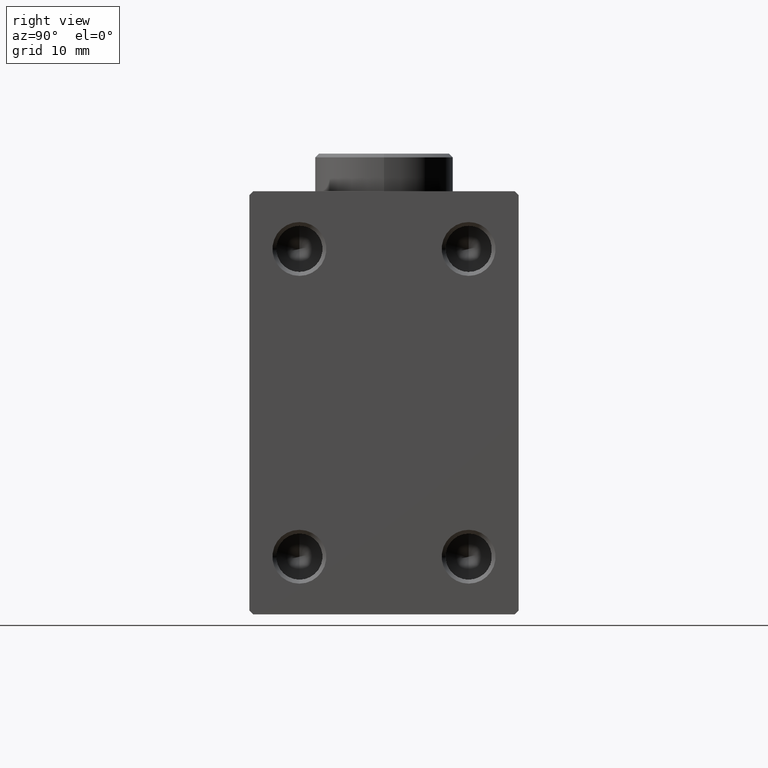
[diagram: clean part render]
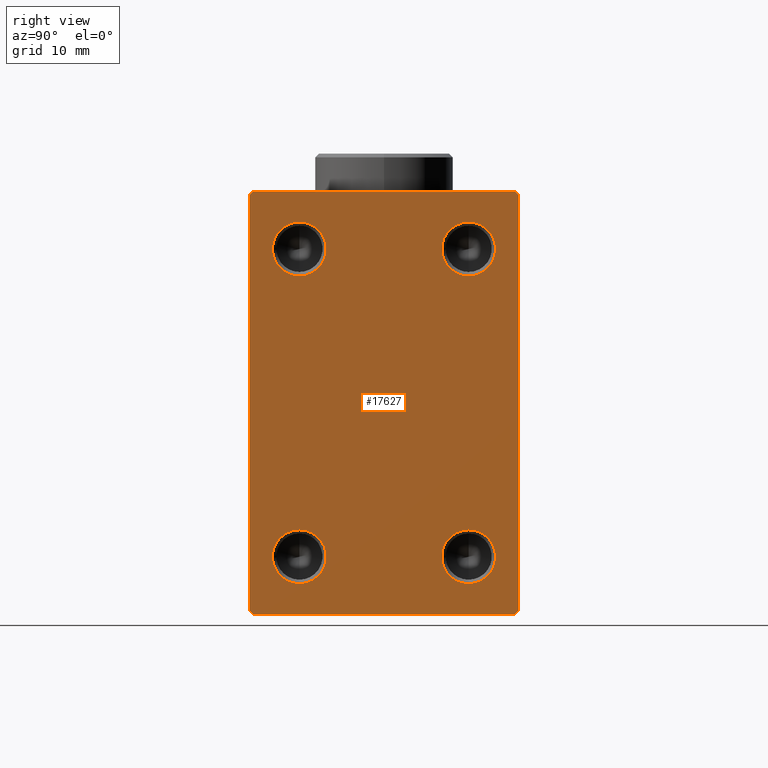
[diagram: same view with one face highlighted and labeled with its STEP entity id]
A machine part, right view. The second image highlights one B-rep face of the part: STEP entity #17627.
In plain terms, the highlighted planar face has unit normal (1, 0, 0).
Its self-contained STEP definition (entity closure, byte-faithful):
#185 = LINE ( 'NONE', #28474, #40691 ) ;
#376 = VECTOR ( 'NONE', #33769, 1000.000000000000000 ) ;
#414 = EDGE_CURVE ( 'NONE', #35803, #30617, #16929, .T. ) ;
#1022 = VECTOR ( 'NONE', #35698, 1000.000000000000114 ) ;
#1881 = ORIENTED_EDGE ( 'NONE', *, *, #40337, .F. ) ;
#2016 = DIRECTION ( 'NONE',  ( 0.000000000000000000, 0.000000000000000000, -1.000000000000000000 ) ) ;
#2292 = EDGE_CURVE ( 'NONE', #40355, #34169, #5990, .T. ) ;
#2976 = AXIS2_PLACEMENT_3D ( 'NONE', #18566, #17893, #28930 ) ;
#3187 = CARTESIAN_POINT ( 'NONE',  ( 56.00000000000000000, 16.99999999999999289, -27.50000000000001066 ) ) ;
#3290 = CIRCLE ( 'NONE', #33451, 3.500000000000003109 ) ;
#3299 = VECTOR ( 'NONE', #14454, 1000.000000000000114 ) ;
#3879 = CIRCLE ( 'NONE', #4600, 3.500000000000003109 ) ;
#4115 = CARTESIAN_POINT ( 'NONE',  ( 56.00000000000000000, -11.00000000000000533, 16.50000000000000711 ) ) ;
#4450 = PLANE ( 'NONE',  #20980 ) ;
#4600 = AXIS2_PLACEMENT_3D ( 'NONE', #41179, #9871, #37268 ) ;
#5867 = EDGE_LOOP ( 'NONE', ( #1881, #45341 ) ) ;
#5973 = LINE ( 'NONE', #41191, #28965 ) ;
#5990 = CIRCLE ( 'NONE', #8917, 3.500000000000003109 ) ;
#6437 = DIRECTION ( 'NONE',  ( 1.000000000000000000, -0.000000000000000000, -0.000000000000000000 ) ) ;
#6621 = CARTESIAN_POINT ( 'NONE',  ( 56.00000000000000000, 11.00000000000000178, 20.00000000000000711 ) ) ;
#6755 = LINE ( 'NONE', #27219, #11118 ) ;
#6806 = EDGE_CURVE ( 'NONE', #30207, #29927, #6755, .T. ) ;
#7047 = CIRCLE ( 'NONE', #12922, 3.500000000000003109 ) ;
#7271 = EDGE_CURVE ( 'NONE', #30617, #35803, #14097, .T. ) ;
#7921 = FACE_BOUND ( 'NONE', #38175, .T. ) ;
#8231 = CARTESIAN_POINT ( 'NONE',  ( 56.00000000000000000, -22.24999999999999289, -22.24999999999999289 ) ) ;
#8385 = DIRECTION ( 'NONE',  ( 0.000000000000000000, -1.261617073437677752E-16, 1.000000000000000000 ) ) ;
#8589 = CARTESIAN_POINT ( 'NONE',  ( 56.00000000000000000, -16.99999999999997513, -27.50000000000000711 ) ) ;
#8695 = LINE ( 'NONE', #22704, #376 ) ;
#8917 = AXIS2_PLACEMENT_3D ( 'NONE', #6621, #34476, #16521 ) ;
#9160 = EDGE_CURVE ( 'NONE', #37375, #41040, #44986, .T. ) ;
#9509 = EDGE_CURVE ( 'NONE', #41040, #37375, #3879, .T. ) ;
#9575 = VERTEX_POINT ( 'NONE', #31252 ) ;
#9871 = DIRECTION ( 'NONE',  ( 1.000000000000000000, -0.000000000000000000, -0.000000000000000000 ) ) ;
#10429 = ORIENTED_EDGE ( 'NONE', *, *, #14551, .T. ) ;
#11118 = VECTOR ( 'NONE', #27673, 1000.000000000000114 ) ;
#11593 = DIRECTION ( 'NONE',  ( 0.000000000000000000, 0.000000000000000000, -1.000000000000000000 ) ) ;
#12887 = DIRECTION ( 'NONE',  ( 0.000000000000000000, 1.000000000000000000, -9.912705577010325549E-17 ) ) ;
#12922 = AXIS2_PLACEMENT_3D ( 'NONE', #25835, #39906, #32082 ) ;
#13122 = VECTOR ( 'NONE', #2016, 1000.000000000000000 ) ;
#13544 = EDGE_CURVE ( 'NONE', #13986, #9575, #21397, .T. ) ;
#13553 = DIRECTION ( 'NONE',  ( 0.000000000000000000, 0.000000000000000000, -1.000000000000000000 ) ) ;
#13986 = VERTEX_POINT ( 'NONE', #20552 ) ;
#14097 = CIRCLE ( 'NONE', #22163, 3.500000000000003109 ) ;
#14152 = VERTEX_POINT ( 'NONE', #8589 ) ;
#14454 = DIRECTION ( 'NONE',  ( -0.000000000000000000, 0.7071067811865474617, -0.7071067811865474617 ) ) ;
#14551 = EDGE_CURVE ( 'NONE', #14152, #24788, #5973, .T. ) ;
#14568 = AXIS2_PLACEMENT_3D ( 'NONE', #37970, #6437, #42098 ) ;
#15395 = EDGE_CURVE ( 'NONE', #34169, #40355, #3290, .T. ) ;
#16521 = DIRECTION ( 'NONE',  ( 0.000000000000000000, 0.000000000000000000, -1.000000000000000000 ) ) ;
#16624 = EDGE_CURVE ( 'NONE', #43137, #13986, #18717, .T. ) ;
#16929 = CIRCLE ( 'NONE', #2976, 3.500000000000003109 ) ;
#17627 = ADVANCED_FACE ( 'NONE', ( #21927, #25381, #39444, #7921, #18470 ), #4450, .T. ) ;
#17893 = DIRECTION ( 'NONE',  ( 1.000000000000000000, -0.000000000000000000, -0.000000000000000000 ) ) ;
#17976 = CARTESIAN_POINT ( 'NONE',  ( 56.00000000000000000, -17.49999999999999645, 26.99999999999997868 ) ) ;
#18400 = CARTESIAN_POINT ( 'NONE',  ( 56.00000000000000000, 22.24999999999992895, 22.25000000000008171 ) ) ;
#18427 = EDGE_CURVE ( 'NONE', #21223, #32440, #7047, .T. ) ;
#18470 = FACE_OUTER_BOUND ( 'NONE', #37245, .T. ) ;
#18566 = CARTESIAN_POINT ( 'NONE',  ( 56.00000000000000000, 11.00000000000000178, -20.00000000000000000 ) ) ;
#18717 = LINE ( 'NONE', #40819, #34215 ) ;
#20552 = CARTESIAN_POINT ( 'NONE',  ( 56.00000000000000000, 17.50000000000000000, 26.99999999999998224 ) ) ;
#20693 = CARTESIAN_POINT ( 'NONE',  ( 56.00000000000000000, -16.99999999999998579, 27.49999999999998579 ) ) ;
#20980 = AXIS2_PLACEMENT_3D ( 'NONE', #43131, #32524, #11593 ) ;
#21180 = DIRECTION ( 'NONE',  ( 0.000000000000000000, 0.000000000000000000, -1.000000000000000000 ) ) ;
#21223 = VERTEX_POINT ( 'NONE', #4115 ) ;
#21395 = CARTESIAN_POINT ( 'NONE',  ( 56.00000000000000000, -11.00000000000000533, 23.50000000000000711 ) ) ;
#21397 = LINE ( 'NONE', #18400, #1022 ) ;
#21927 = FACE_BOUND ( 'NONE', #31478, .T. ) ;
#21999 = CARTESIAN_POINT ( 'NONE',  ( 56.00000000000000000, 11.00000000000000178, -23.50000000000000000 ) ) ;
#22163 = AXIS2_PLACEMENT_3D ( 'NONE', #40220, #29840, #21180 ) ;
#22704 = CARTESIAN_POINT ( 'NONE',  ( 56.00000000000000000, 22.24999999999988631, -22.25000000000019185 ) ) ;
#23098 = ORIENTED_EDGE ( 'NONE', *, *, #15395, .F. ) ;
#24099 = EDGE_CURVE ( 'NONE', #9575, #30207, #185, .T. ) ;
#24585 = CARTESIAN_POINT ( 'NONE',  ( 56.00000000000000000, 11.00000000000000178, 23.50000000000000711 ) ) ;
#24712 = ORIENTED_EDGE ( 'NONE', *, *, #24099, .T. ) ;
#24788 = VERTEX_POINT ( 'NONE', #3187 ) ;
#24824 = ORIENTED_EDGE ( 'NONE', *, *, #6806, .T. ) ;
#25242 = DIRECTION ( 'NONE',  ( 0.000000000000000000, -1.000000000000000000, -1.982541115402065356E-16 ) ) ;
#25381 = FACE_BOUND ( 'NONE', #5867, .T. ) ;
#25442 = ORIENTED_EDGE ( 'NONE', *, *, #13544, .T. ) ;
#25835 = CARTESIAN_POINT ( 'NONE',  ( 56.00000000000000000, -11.00000000000000533, 20.00000000000000711 ) ) ;
#26791 = DIRECTION ( 'NONE',  ( 0.000000000000000000, 0.000000000000000000, -1.000000000000000000 ) ) ;
#27013 = ORIENTED_EDGE ( 'NONE', *, *, #9509, .F. ) ;
#27219 = CARTESIAN_POINT ( 'NONE',  ( 56.00000000000000000, -22.24999999999998579, 22.24999999999998579 ) ) ;
#27354 = CARTESIAN_POINT ( 'NONE',  ( 56.00000000000000000, 11.00000000000000178, -16.50000000000000000 ) ) ;
#27673 = DIRECTION ( 'NONE',  ( 0.000000000000000000, -0.7071067811865474617, -0.7071067811865474617 ) ) ;
#28474 = CARTESIAN_POINT ( 'NONE',  ( 56.00000000000000000, 17.50000000000000000, 27.49999999999999289 ) ) ;
#28480 = CARTESIAN_POINT ( 'NONE',  ( 56.00000000000000000, -11.00000000000000533, -20.00000000000000000 ) ) ;
#28514 = CIRCLE ( 'NONE', #14568, 3.500000000000003109 ) ;
#28930 = DIRECTION ( 'NONE',  ( 0.000000000000000000, 0.000000000000000000, -1.000000000000000000 ) ) ;
#28965 = VECTOR ( 'NONE', #12887, 1000.000000000000000 ) ;
#29840 = DIRECTION ( 'NONE',  ( 1.000000000000000000, -0.000000000000000000, -0.000000000000000000 ) ) ;
#29927 = VERTEX_POINT ( 'NONE', #17976 ) ;
#30207 = VERTEX_POINT ( 'NONE', #20693 ) ;
#30617 = VERTEX_POINT ( 'NONE', #21999 ) ;
#30728 = CARTESIAN_POINT ( 'NONE',  ( 56.00000000000000000, 17.50000000000000711, -27.00000000000000355 ) ) ;
#31252 = CARTESIAN_POINT ( 'NONE',  ( 56.00000000000000000, 16.99999999999998579, 27.49999999999999289 ) ) ;
#31478 = EDGE_LOOP ( 'NONE', ( #38834, #23098 ) ) ;
#31744 = ORIENTED_EDGE ( 'NONE', *, *, #7271, .F. ) ;
#31966 = CARTESIAN_POINT ( 'NONE',  ( 56.00000000000000000, -11.00000000000000533, -23.50000000000000000 ) ) ;
#32058 = EDGE_CURVE ( 'NONE', #40490, #14152, #36533, .T. ) ;
#32082 = DIRECTION ( 'NONE',  ( 0.000000000000000000, 0.000000000000000000, -1.000000000000000000 ) ) ;
#32440 = VERTEX_POINT ( 'NONE', #21395 ) ;
#32524 = DIRECTION ( 'NONE',  ( 1.000000000000000000, 0.000000000000000000, 0.000000000000000000 ) ) ;
#33035 = EDGE_CURVE ( 'NONE', #24788, #43137, #8695, .T. ) ;
#33451 = AXIS2_PLACEMENT_3D ( 'NONE', #36504, #40632, #26791 ) ;
#33538 = LINE ( 'NONE', #40219, #13122 ) ;
#33579 = CARTESIAN_POINT ( 'NONE',  ( 56.00000000000000000, -11.00000000000000533, -16.50000000000000000 ) ) ;
#33769 = DIRECTION ( 'NONE',  ( -0.000000000000000000, 0.7071067811865524577, 0.7071067811865426878 ) ) ;
#34169 = VERTEX_POINT ( 'NONE', #36493 ) ;
#34215 = VECTOR ( 'NONE', #8385, 1000.000000000000000 ) ;
#34476 = DIRECTION ( 'NONE',  ( 1.000000000000000000, -0.000000000000000000, -0.000000000000000000 ) ) ;
#34847 = CARTESIAN_POINT ( 'NONE',  ( 56.00000000000000000, -17.49999999999999645, -26.99999999999998579 ) ) ;
#35179 = DIRECTION ( 'NONE',  ( 1.000000000000000000, -0.000000000000000000, -0.000000000000000000 ) ) ;
#35698 = DIRECTION ( 'NONE',  ( -0.000000000000000000, -0.7071067811865500152, 0.7071067811865451302 ) ) ;
#35803 = VERTEX_POINT ( 'NONE', #27354 ) ;
#36189 = AXIS2_PLACEMENT_3D ( 'NONE', #28480, #35179, #13553 ) ;
#36493 = CARTESIAN_POINT ( 'NONE',  ( 56.00000000000000000, 11.00000000000000178, 16.50000000000000711 ) ) ;
#36504 = CARTESIAN_POINT ( 'NONE',  ( 56.00000000000000000, 11.00000000000000178, 20.00000000000000711 ) ) ;
#36533 = LINE ( 'NONE', #8231, #3299 ) ;
#37245 = EDGE_LOOP ( 'NONE', ( #24712, #24824, #40246, #42785, #10429, #42559, #42358, #25442 ) ) ;
#37268 = DIRECTION ( 'NONE',  ( 0.000000000000000000, 0.000000000000000000, -1.000000000000000000 ) ) ;
#37375 = VERTEX_POINT ( 'NONE', #33579 ) ;
#37633 = ORIENTED_EDGE ( 'NONE', *, *, #414, .F. ) ;
#37818 = EDGE_LOOP ( 'NONE', ( #41316, #27013 ) ) ;
#37970 = CARTESIAN_POINT ( 'NONE',  ( 56.00000000000000000, -11.00000000000000533, 20.00000000000000711 ) ) ;
#38175 = EDGE_LOOP ( 'NONE', ( #37633, #31744 ) ) ;
#38834 = ORIENTED_EDGE ( 'NONE', *, *, #2292, .F. ) ;
#39444 = FACE_BOUND ( 'NONE', #37818, .T. ) ;
#39906 = DIRECTION ( 'NONE',  ( 1.000000000000000000, -0.000000000000000000, -0.000000000000000000 ) ) ;
#40219 = CARTESIAN_POINT ( 'NONE',  ( 56.00000000000000000, -17.49999999999999645, 27.49999999999998579 ) ) ;
#40220 = CARTESIAN_POINT ( 'NONE',  ( 56.00000000000000000, 11.00000000000000178, -20.00000000000000000 ) ) ;
#40246 = ORIENTED_EDGE ( 'NONE', *, *, #44937, .T. ) ;
#40337 = EDGE_CURVE ( 'NONE', #32440, #21223, #28514, .T. ) ;
#40355 = VERTEX_POINT ( 'NONE', #24585 ) ;
#40490 = VERTEX_POINT ( 'NONE', #34847 ) ;
#40632 = DIRECTION ( 'NONE',  ( 1.000000000000000000, -0.000000000000000000, -0.000000000000000000 ) ) ;
#40691 = VECTOR ( 'NONE', #25242, 1000.000000000000000 ) ;
#40819 = CARTESIAN_POINT ( 'NONE',  ( 56.00000000000000000, 17.50000000000000711, -27.50000000000001066 ) ) ;
#41040 = VERTEX_POINT ( 'NONE', #31966 ) ;
#41179 = CARTESIAN_POINT ( 'NONE',  ( 56.00000000000000000, -11.00000000000000533, -20.00000000000000000 ) ) ;
#41191 = CARTESIAN_POINT ( 'NONE',  ( 56.00000000000000000, -17.49999999999999645, -27.50000000000000711 ) ) ;
#41316 = ORIENTED_EDGE ( 'NONE', *, *, #9160, .F. ) ;
#42098 = DIRECTION ( 'NONE',  ( 0.000000000000000000, 0.000000000000000000, -1.000000000000000000 ) ) ;
#42358 = ORIENTED_EDGE ( 'NONE', *, *, #16624, .T. ) ;
#42559 = ORIENTED_EDGE ( 'NONE', *, *, #33035, .T. ) ;
#42785 = ORIENTED_EDGE ( 'NONE', *, *, #32058, .T. ) ;
#43131 = CARTESIAN_POINT ( 'NONE',  ( 56.00000000000000000, 0.000000000000000000, 0.000000000000000000 ) ) ;
#43137 = VERTEX_POINT ( 'NONE', #30728 ) ;
#44937 = EDGE_CURVE ( 'NONE', #29927, #40490, #33538, .T. ) ;
#44986 = CIRCLE ( 'NONE', #36189, 3.500000000000003109 ) ;
#45341 = ORIENTED_EDGE ( 'NONE', *, *, #18427, .F. ) ;